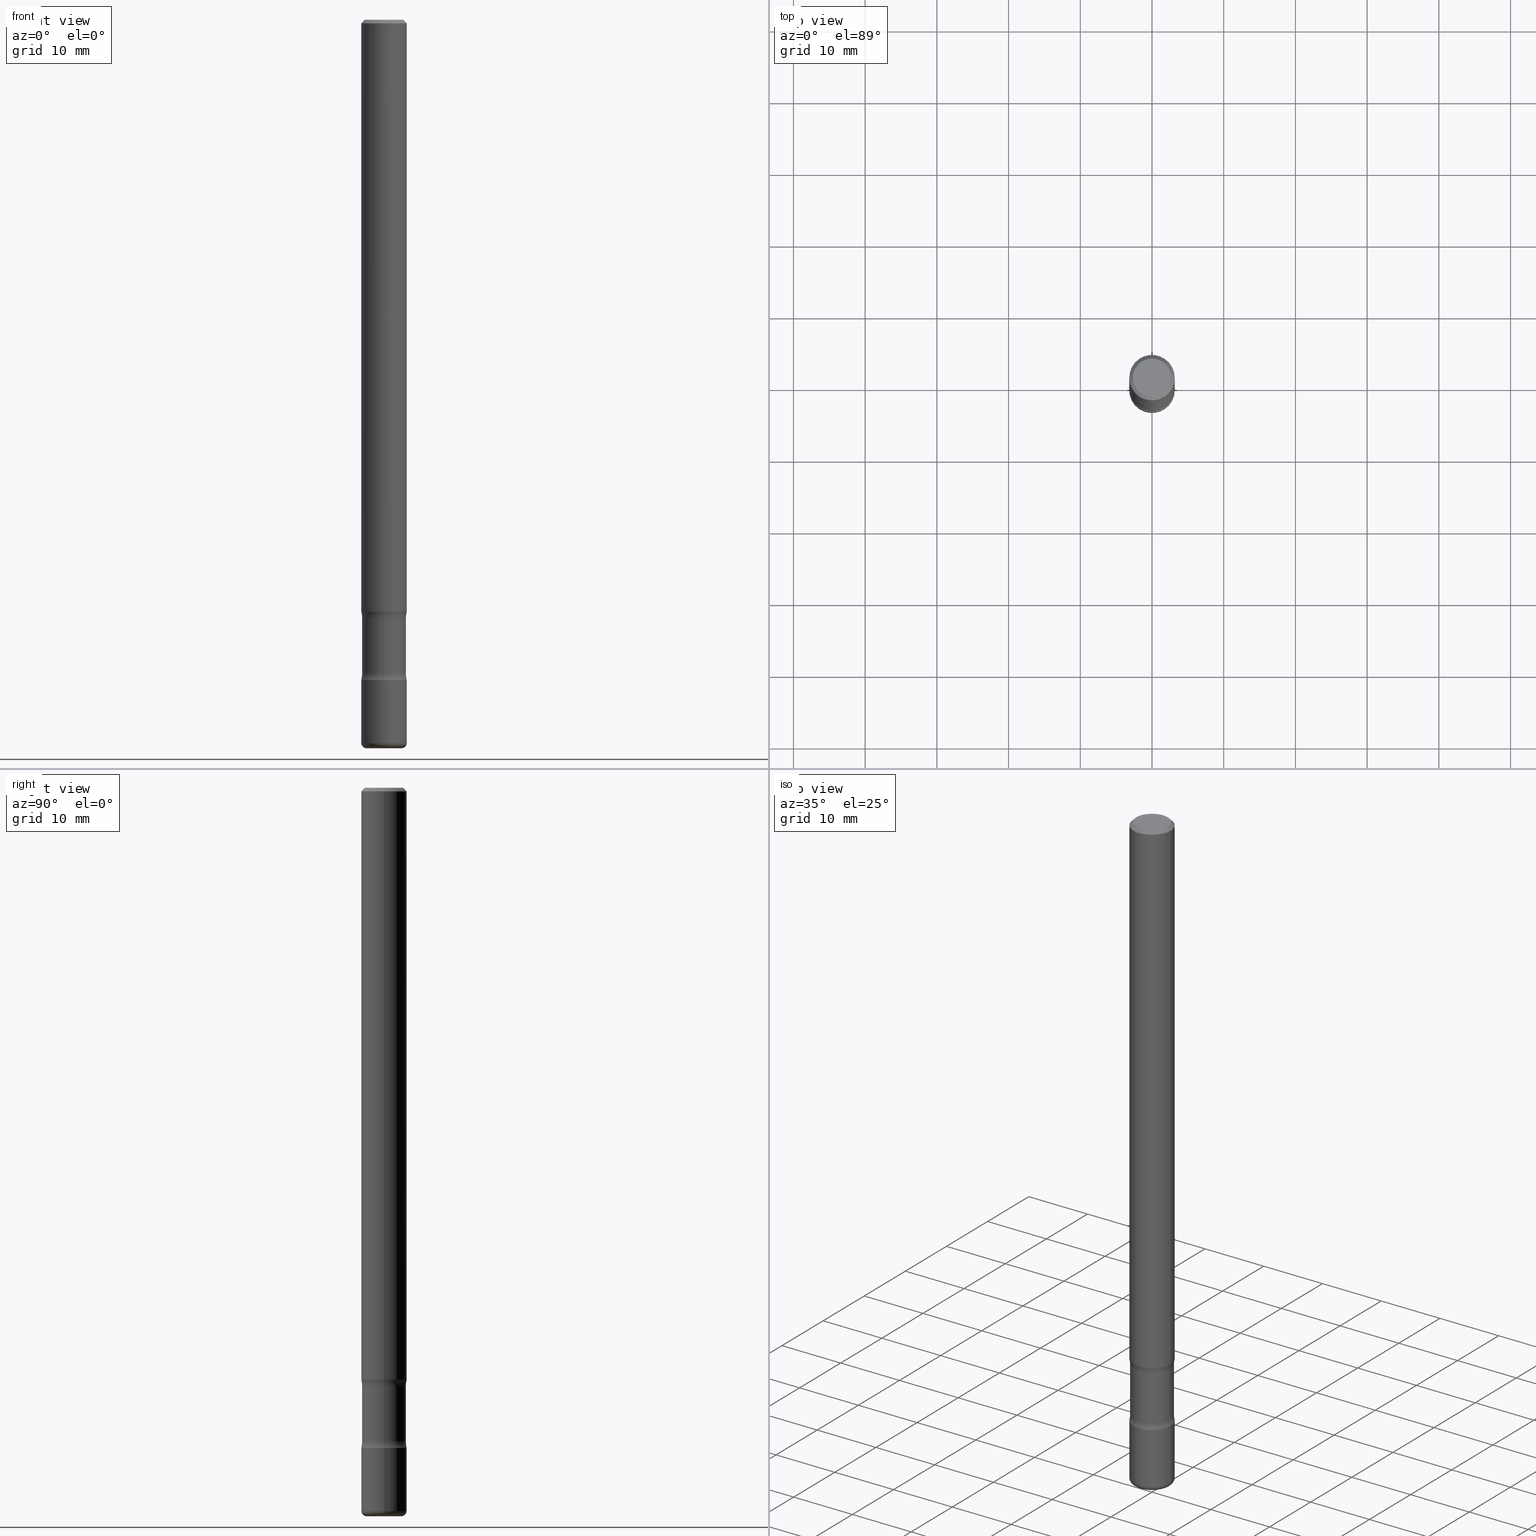
[diagram: canonical four-view strip — front | top / right | iso, engineering-drawing reading convention]
A machine part, canonical four-view strip (front | top / right | iso — engineering-drawing reading convention). The complete STEP part file that produces these views, byte-faithful:
ISO-10303-21;
HEADER;
FILE_DESCRIPTION (( 'STEP AP203' ),
    '1' );
FILE_NAME ('32818.STEP',
    '2023-03-11T07:03:55',
    ( '' ),
    ( '' ),
    'SwSTEP 2.0',
    'SolidWorks 2022',
    '' );
FILE_SCHEMA (( 'CONFIG_CONTROL_DESIGN' ));
ENDSEC;

DATA;
#1 = ORIENTED_EDGE ( 'NONE', *, *, #155, .T. ) ;
#2 = CIRCLE ( 'NONE', #408, 0.1250000000000000278 ) ;
#3 = AXIS2_PLACEMENT_3D ( 'NONE', #372, #666, #156 ) ;
#4 = ADVANCED_FACE ( 'NONE', ( #358 ), #473, .F. ) ;
#5 = ORIENTED_EDGE ( 'NONE', *, *, #150, .T. ) ;
#6 = APPROVAL_DATE_TIME ( #498, #399 ) ;
#7 = CARTESIAN_POINT ( 'NONE',  ( 0.1250000000000000555, -1.222018468595100619E-14, -3.250000000000000000 ) ) ;
#8 = EDGE_CURVE ( 'NONE', #611, #263, #296, .T. ) ;
#9 = CLOSED_SHELL ( 'NONE', ( #48, #315, #489, #176, #683, #194, #4, #525 ) ) ;
#10 = AXIS2_PLACEMENT_3D ( 'NONE', #643, #86, #81 ) ;
#11 = CARTESIAN_POINT ( 'NONE',  ( -0.1200000000000000649, -1.049466306832810345E-14, -3.250000000000000000 ) ) ;
#12 = VECTOR ( 'NONE', #334, 39.37007874015748143 ) ;
#13 = DIRECTION ( 'NONE',  ( 2.438088387897960049E-29, -3.491481338843145188E-15, -1.000000000000000000 ) ) ;
#14 = EDGE_CURVE ( 'NONE', #263, #758, #792, .T. ) ;
#15 = DIRECTION ( 'NONE',  ( 6.982962677686265922E-15, 1.000000000000000000, -4.553079989440436725E-15 ) ) ;
#16 = FACE_OUTER_BOUND ( 'NONE', #382, .T. ) ;
#17 = CALENDAR_DATE ( 2023, 11, 3 ) ;
#18 = EDGE_CURVE ( 'NONE', #765, #564, #405, .T. ) ;
#19 = DIRECTION ( 'NONE',  ( 2.447693432453716965E-29, -3.488295547408674673E-15, -1.000000000000000000 ) ) ;
#20 = FACE_OUTER_BOUND ( 'NONE', #553, .T. ) ;
#21 = VECTOR ( 'NONE', #266, 39.37007874015748854 ) ;
#22 = ADVANCED_FACE ( 'NONE', ( #20 ), #161, .F. ) ;
#23 = VECTOR ( 'NONE', #595, 39.37007874015748143 ) ;
#24 = CC_DESIGN_SECURITY_CLASSIFICATION ( #577, ( #425 ) ) ;
#25 = LINE ( 'NONE', #307, #423 ) ;
#26 = DIRECTION ( 'NONE',  ( -2.445468806185136597E-29, 3.491481338843145583E-15, 1.000000000000000000 ) ) ;
#27 = CARTESIAN_POINT ( 'NONE',  ( 8.864824422421120163E-29, -1.265661985330640259E-14, -3.624999999999999556 ) ) ;
#28 = DIRECTION ( 'NONE',  ( 6.982962677686265922E-15, 1.000000000000000000, -4.553079989440435936E-15 ) ) ;
#29 = ORIENTED_EDGE ( 'NONE', *, *, #308, .T. ) ;
#30 = EDGE_CURVE ( 'NONE', #785, #612, #460, .T. ) ;
#31 = EDGE_CURVE ( 'NONE', #419, #275, #210, .T. ) ;
#32 = DIRECTION ( 'NONE',  ( -2.445468806185136597E-29, 3.491481338843145583E-15, 1.000000000000000000 ) ) ;
#33 = DIRECTION ( 'NONE',  ( 6.982962677686265922E-15, 1.000000000000000000, -3.488295547408674673E-15 ) ) ;
#34 = AXIS2_PLACEMENT_3D ( 'NONE', #804, #114, #93 ) ;
#35 = AXIS2_PLACEMENT_3D ( 'NONE', #141, #13, #305 ) ;
#36 = DIRECTION ( 'NONE',  ( -1.000000000000000000, 6.982962677686266711E-15, 0.000000000000000000 ) ) ;
#37 = ORIENTED_EDGE ( 'NONE', *, *, #190, .F. ) ;
#38 = DIRECTION ( 'NONE',  ( 2.438088387897960049E-29, -3.491481338843145188E-15, -1.000000000000000000 ) ) ;
#39 = CARTESIAN_POINT ( 'NONE',  ( 7.947773620101693940E-29, -1.134731435124022443E-14, -3.250000000000000000 ) ) ;
#40 = LINE ( 'NONE', #532, #23 ) ;
#41 = DIRECTION ( 'NONE',  ( 6.982962677686265922E-15, 1.000000000000000000, -4.553079989440435148E-15 ) ) ;
#42 = EDGE_CURVE ( 'NONE', #765, #409, #149, .T. ) ;
#43 = FACE_OUTER_BOUND ( 'NONE', #570, .T. ) ;
#44 = ORIENTED_EDGE ( 'NONE', *, *, #125, .F. ) ;
#45 = CARTESIAN_POINT ( 'NONE',  ( 7.947773620101693940E-29, -1.134731435124022443E-14, -3.250000000000000000 ) ) ;
#46 = DIRECTION ( 'NONE',  ( 1.000000000000000000, -6.982962677686265922E-15, 4.876176775795935793E-29 ) ) ;
#47 = EDGE_LOOP ( 'NONE', ( #238, #137, #657, #486 ) ) ;
#48 = ADVANCED_FACE ( 'NONE', ( #649 ), #135, .T. ) ;
#49 = AXIS2_PLACEMENT_3D ( 'NONE', #493, #61, #347 ) ;
#50 = TOROIDAL_SURFACE ( 'NONE', #563, 0.09499999999999998723, 0.02999999999999970399 ) ;
#51 = ORIENTED_EDGE ( 'NONE', *, *, #621, .F. ) ;
#52 = CARTESIAN_POINT ( 'NONE',  ( 8.728703347108632110E-16, 0.1249999999999886896, -3.250000000000000444 ) ) ;
#53 = DIRECTION ( 'NONE',  ( -2.445468806185136597E-29, 3.491481338843145583E-15, 1.000000000000000000 ) ) ;
#54 = DIRECTION ( 'NONE',  ( -2.445468806185136597E-29, 3.491481338843145583E-15, 1.000000000000000000 ) ) ;
#55 = COORDINATED_UNIVERSAL_TIME_OFFSET ( 5, 0, .BEHIND. ) ;
#56 = DIRECTION ( 'NONE',  ( -1.000000000000000000, 7.105427357601005014E-15, 0.000000000000000000 ) ) ;
#57 = ORIENTED_EDGE ( 'NONE', *, *, #664, .T. ) ;
#58 = EDGE_CURVE ( 'NONE', #485, #741, #143, .T. ) ;
#59 = PERSON_AND_ORGANIZATION ( #205, #119 ) ;
#60 = FACE_OUTER_BOUND ( 'NONE', #230, .T. ) ;
#61 = DIRECTION ( 'NONE',  ( -2.445468806185136597E-29, 3.491481338843145583E-15, 1.000000000000000000 ) ) ;
#62 = CARTESIAN_POINT ( 'NONE',  ( -0.09499999999999998723, -1.318616531623519397E-14, -3.970000000000000195 ) ) ;
#63 = CALENDAR_DATE ( 2023, 11, 3 ) ;
#64 = EDGE_CURVE ( 'NONE', #612, #602, #562, .T. ) ;
#65 = APPROVAL_PERSON_ORGANIZATION ( #59, #158, #294 ) ;
#66 = DIRECTION ( 'NONE',  ( 2.447693432453716965E-29, -3.488295547408674673E-15, -1.000000000000000000 ) ) ;
#67 = CC_DESIGN_PERSON_AND_ORGANIZATION_ASSIGNMENT ( #124, #292, ( #500 ) ) ;
#68 = ORIENTED_EDGE ( 'NONE', *, *, #200, .T. ) ;
#69 = EDGE_CURVE ( 'NONE', #356, #409, #25, .T. ) ;
#70 = DIRECTION ( 'NONE',  ( 6.982962677686265922E-15, 1.000000000000000000, -4.553079989440435148E-15 ) ) ;
#71 = CLOSED_SHELL ( 'NONE', ( #239, #610, #400, #22, #332, #286, #697, #279 ) ) ;
#72 = CIRCLE ( 'NONE', #98, 0.1250000000000000000 ) ;
#73 = AXIS2_PLACEMENT_3D ( 'NONE', #191, #580, #15 ) ;
#74 = LOCAL_TIME ( 2, 3, 55.00000000000000000, #55 ) ;
#75 = CARTESIAN_POINT ( 'NONE',  ( 2.539597002598725045E-27, 3.357106178336536129E-13, -4.000000000000000000 ) ) ;
#76 = ORIENTED_EDGE ( 'NONE', *, *, #31, .F. ) ;
#77 = ADVANCED_FACE ( 'NONE', ( #260 ), #253, .T. ) ;
#78 = ORIENTED_EDGE ( 'NONE', *, *, #647, .F. ) ;
#79 = DIRECTION ( 'NONE',  ( 1.000000000000000000, -6.982962677686272233E-15, 0.000000000000000000 ) ) ;
#80 = ADVANCED_FACE ( 'NONE', ( #16 ), #521, .F. ) ;
#81 = DIRECTION ( 'NONE',  ( 1.000000000000000000, -6.982962677686267499E-15, 4.876206205277409163E-29 ) ) ;
#82 = ORIENTED_EDGE ( 'NONE', *, *, #512, .T. ) ;
#83 = EDGE_LOOP ( 'NONE', ( #586, #787 ) ) ;
#84 = DIRECTION ( 'NONE',  ( -0.9993908270190959842, 6.856857904024576981E-15, -0.03489949670249575808 ) ) ;
#85 = CARTESIAN_POINT ( 'NONE',  ( 0.1250000000000000000, -1.222018468595100619E-14, -3.250000000000000000 ) ) ;
#86 = DIRECTION ( 'NONE',  ( -2.445468806185136597E-29, 3.491481338843145583E-15, 1.000000000000000000 ) ) ;
#87 = CIRCLE ( 'NONE', #488, 0.08250000000000003164 ) ;
#88 = AXIS2_PLACEMENT_3D ( 'NONE', #237, #659, #414 ) ;
#89 = DIRECTION ( 'NONE',  ( 1.000000000000000000, -6.982962677686262766E-15, 0.000000000000000000 ) ) ;
#90 = SHAPE_DEFINITION_REPRESENTATION ( #403, #646 ) ;
#91 = DIRECTION ( 'NONE',  ( 1.000000000000000000, -6.982962677686262766E-15, 0.000000000000000000 ) ) ;
#92 = CARTESIAN_POINT ( 'NONE',  ( -8.575622497213525998E-16, -0.1250000000000126288, -3.624999999999999112 ) ) ;
#93 = DIRECTION ( 'NONE',  ( 1.000000000000000000, -6.982962677686261977E-15, 0.000000000000000000 ) ) ;
#94 = ORIENTED_EDGE ( 'NONE', *, *, #42, .F. ) ;
#95 = ORIENTED_EDGE ( 'NONE', *, *, #206, .F. ) ;
#96 = LINE ( 'NONE', #599, #12 ) ;
#97 = CARTESIAN_POINT ( 'NONE',  ( 0.000000000000000000, 0.000000000000000000, 0.000000000000000000 ) ) ;
#98 = AXIS2_PLACEMENT_3D ( 'NONE', #346, #596, #539 ) ;
#99 = VERTEX_POINT ( 'NONE', #607 ) ;
#100 = VECTOR ( 'NONE', #752, 39.37007874015748143 ) ;
#101 = DIRECTION ( 'NONE',  ( 1.000000000000000000, -6.982962677686266711E-15, 4.876176775795935793E-29 ) ) ;
#102 = ORIENTED_EDGE ( 'NONE', *, *, #732, .T. ) ;
#103 = CARTESIAN_POINT ( 'NONE',  ( 4.890937612370279289E-31, -6.982962677686299005E-17, -0.02000000000000002470 ) ) ;
#104 = ORIENTED_EDGE ( 'NONE', *, *, #720, .T. ) ;
#105 = CARTESIAN_POINT ( 'NONE',  ( 7.947773620101693940E-29, -1.134731435124022443E-14, -3.250000000000000000 ) ) ;
#106 = ADVANCED_FACE ( 'NONE', ( #671 ), #616, .T. ) ;
#107 = EDGE_LOOP ( 'NONE', ( #614, #354, #701, #57 ) ) ;
#108 = VERTEX_POINT ( 'NONE', #339 ) ;
#109 = DIRECTION ( 'NONE',  ( 2.438088387897960049E-29, -3.491481338843145188E-15, -1.000000000000000000 ) ) ;
#110 = CARTESIAN_POINT ( 'NONE',  ( 7.947773620101693940E-29, -1.134731435124022443E-14, -3.250000000000000000 ) ) ;
#111 = ORIENTED_EDGE ( 'NONE', *, *, #330, .F. ) ;
#112 = ORIENTED_EDGE ( 'NONE', *, *, #443, .T. ) ;
#113 = CARTESIAN_POINT ( 'NONE',  ( -0.09499999999999998723, -1.313195612595382632E-14, -3.999999999999999556 ) ) ;
#114 = DIRECTION ( 'NONE',  ( -2.445468806185136597E-29, 3.491481338843145583E-15, 1.000000000000000000 ) ) ;
#115 = VERTEX_POINT ( 'NONE', #490 ) ;
#116 = CIRCLE ( 'NONE', #249, 0.1250000000000000000 ) ;
#117 = AXIS2_PLACEMENT_3D ( 'NONE', #736, #53, #287 ) ;
#118 = DIRECTION ( 'NONE',  ( -2.445468806185136597E-29, 3.491481338843145583E-15, 1.000000000000000000 ) ) ;
#119 = ORGANIZATION ( 'UNSPECIFIED', 'UNSPECIFIED', '' ) ;
#120 = DIRECTION ( 'NONE',  ( -2.445468806185136597E-29, 3.491481338843145583E-15, 1.000000000000000000 ) ) ;
#121 = CARTESIAN_POINT ( 'NONE',  ( 9.781875224740546387E-29, -1.396592535537258233E-14, -4.000000000000000000 ) ) ;
#122 = ORIENTED_EDGE ( 'NONE', *, *, #517, .T. ) ;
#123 = ORIENTED_EDGE ( 'NONE', *, *, #301, .F. ) ;
#124 = PERSON_AND_ORGANIZATION ( #205, #119 ) ;
#125 = EDGE_CURVE ( 'NONE', #204, #685, #72, .T. ) ;
#126 = ORIENTED_EDGE ( 'NONE', *, *, #125, .T. ) ;
#127 = DIRECTION ( 'NONE',  ( 2.447693432453716965E-29, -3.488295547408674673E-15, -1.000000000000000000 ) ) ;
#128 = AXIS2_PLACEMENT_3D ( 'NONE', #233, #677, #219 ) ;
#129 = EDGE_LOOP ( 'NONE', ( #688, #501, #111, #730 ) ) ;
#130 = CIRCLE ( 'NONE', #734, 0.1250000000000000000 ) ;
#131 = CC_DESIGN_APPROVAL ( #399, ( #500 ) ) ;
#132 = ORIENTED_EDGE ( 'NONE', *, *, #30, .F. ) ;
#133 = CARTESIAN_POINT ( 'NONE',  ( 0.000000000000000000, 0.000000000000000000, 0.000000000000000000 ) ) ;
#134 = MANIFOLD_SOLID_BREP ( 'Body-Move/Copy2[3]', #9 ) ;
#135 = CYLINDRICAL_SURFACE ( 'NONE', #573, 0.1200000000000000649 ) ;
#136 = DIRECTION ( 'NONE',  ( -2.445468806185136877E-29, 3.491481338843145188E-15, 1.000000000000000000 ) ) ;
#137 = ORIENTED_EDGE ( 'NONE', *, *, #369, .T. ) ;
#138 = ORIENTED_EDGE ( 'NONE', *, *, #8, .T. ) ;
#139 = DIRECTION ( 'NONE',  ( 6.982962677686265922E-15, 1.000000000000000000, -4.553079989440435936E-15 ) ) ;
#140 = CIRCLE ( 'NONE', #390, 0.1250000000000000278 ) ;
#141 = CARTESIAN_POINT ( 'NONE',  ( 8.864824422421120163E-29, -1.265661985330640259E-14, -3.624999999999999556 ) ) ;
#142 = EDGE_CURVE ( 'NONE', #685, #204, #116, .T. ) ;
#143 = LINE ( 'NONE', #635, #459 ) ;
#144 = ORIENTED_EDGE ( 'NONE', *, *, #369, .F. ) ;
#145 = CARTESIAN_POINT ( 'NONE',  ( 8.779233014204640876E-29, -1.253441800644689261E-14, -3.590000000000000302 ) ) ;
#146 = DIRECTION ( 'NONE',  ( -2.445468806185136877E-29, 3.491481338843145188E-15, 1.000000000000000000 ) ) ;
#147 = CARTESIAN_POINT ( 'NONE',  ( 7.332110811570557564E-16, 0.1049999999999996769, -3.644712843334789960E-16 ) ) ;
#148 = PERSON_AND_ORGANIZATION ( #205, #119 ) ;
#149 = CIRCLE ( 'NONE', #615, 0.1250000000000001110 ) ;
#150 = EDGE_CURVE ( 'NONE', #785, #472, #297, .T. ) ;
#151 = AXIS2_PLACEMENT_3D ( 'NONE', #105, #342, #739 ) ;
#152 = CARTESIAN_POINT ( 'NONE',  ( 8.033365028318175469E-29, -1.146951619809973441E-14, -3.285000000000000586 ) ) ;
#153 = DIRECTION ( 'NONE',  ( -2.447693432453716405E-29, 3.488295547408675068E-15, 1.000000000000000000 ) ) ;
#154 = CARTESIAN_POINT ( 'NONE',  ( 8.779155152285240110E-29, -1.253452950914709766E-14, -3.589999999999999858 ) ) ;
#155 = EDGE_CURVE ( 'NONE', #567, #356, #162, .T. ) ;
#156 = DIRECTION ( 'NONE',  ( 1.000000000000000000, -6.982962677686262766E-15, 0.000000000000000000 ) ) ;
#157 = FACE_OUTER_BOUND ( 'NONE', #199, .T. ) ;
#158 = APPROVAL ( #244, 'UNSPECIFIED' ) ;
#159 = DIRECTION ( 'NONE',  ( 1.000000000000000000, -6.982962677686264344E-15, 4.883557194083112340E-29 ) ) ;
#160 = DIRECTION ( 'NONE',  ( -2.445468806185136877E-29, 3.491481338843145188E-15, 1.000000000000000000 ) ) ;
#161 = TOROIDAL_SURFACE ( 'NONE', #731, 0.2450000000000000511, 0.1250000000000001110 ) ;
#162 = CIRCLE ( 'NONE', #49, 0.1200000000000000927 ) ;
#163 = TOROIDAL_SURFACE ( 'NONE', #476, 0.2450000000000000511, 0.1250000000000001110 ) ;
#164 = CARTESIAN_POINT ( 'NONE',  ( 9.708511160554992872E-29, -1.386118091520728738E-14, -3.970000000000000195 ) ) ;
#165 = CC_DESIGN_APPROVAL ( #378, ( #577 ) ) ;
#166 = ADVANCED_FACE ( 'NONE', ( #674, #588 ), #325, .F. ) ;
#167 = CARTESIAN_POINT ( 'NONE',  ( 8.779233014204640876E-29, -1.253441800644689261E-14, -3.590000000000000302 ) ) ;
#168 = ORIENTED_EDGE ( 'NONE', *, *, #621, .T. ) ;
#169 = ORIENTED_EDGE ( 'NONE', *, *, #217, .T. ) ;
#170 = DIRECTION ( 'NONE',  ( -1.000000000000000000, 6.982962677686265922E-15, -4.876176775795935793E-29 ) ) ;
#171 = DIRECTION ( 'NONE',  ( -2.438088387897960049E-29, 3.491481338843145188E-15, 1.000000000000000000 ) ) ;
#172 = EDGE_LOOP ( 'NONE', ( #724, #138, #397, #543 ) ) ;
#173 = CARTESIAN_POINT ( 'NONE',  ( 0.1200000000000000927, -1.337237352776924272E-14, -3.589999999999999858 ) ) ;
#174 = ORIENTED_EDGE ( 'NONE', *, *, #14, .T. ) ;
#175 = DIRECTION ( 'NONE',  ( 0.000000000000000000, 0.000000000000000000, 1.000000000000000000 ) ) ;
#176 = ADVANCED_FACE ( 'NONE', ( #768 ), #197, .F. ) ;
#177 = DIRECTION ( 'NONE',  ( -1.000000000000000000, 7.105427357600994759E-15, 0.000000000000000000 ) ) ;
#178 = AXIS2_PLACEMENT_3D ( 'NONE', #164, #508, #761 ) ;
#179 = AXIS2_PLACEMENT_3D ( 'NONE', #97, #593, #770 ) ;
#180 = CYLINDRICAL_SURFACE ( 'NONE', #392, 0.1249999999999998473 ) ;
#181 = ADVANCED_FACE ( 'NONE', ( #555 ), #784, .T. ) ;
#182 = DIRECTION ( 'NONE',  ( -2.445468806185136597E-29, 3.491481338843145583E-15, 1.000000000000000000 ) ) ;
#183 = CARTESIAN_POINT ( 'NONE',  ( 0.1249999999999998473, -1.473405124991807072E-14, -3.970000000000000195 ) ) ;
#184 = ORIENTED_EDGE ( 'NONE', *, *, #439, .F. ) ;
#185 = EDGE_CURVE ( 'NONE', #115, #773, #665, .T. ) ;
#186 = CIRCLE ( 'NONE', #638, 0.1250000000000000000 ) ;
#187 = AXIS2_PLACEMENT_3D ( 'NONE', #45, #171, #673 ) ;
#188 = EDGE_CURVE ( 'NONE', #611, #457, #436, .T. ) ;
#189 =( NAMED_UNIT ( * ) PLANE_ANGLE_UNIT ( ) SI_UNIT ( $, .RADIAN. ) );
#190 = EDGE_CURVE ( 'NONE', #108, #415, #728, .T. ) ;
#191 = CARTESIAN_POINT ( 'NONE',  ( 8.032608655386859192E-29, -1.147059936718745526E-14, -3.285000000000000586 ) ) ;
#192 = ORIENTED_EDGE ( 'NONE', *, *, #427, .T. ) ;
#193 = DIRECTION ( 'NONE',  ( 2.447693432453716965E-29, -3.488295547408674673E-15, -1.000000000000000000 ) ) ;
#194 = ADVANCED_FACE ( 'NONE', ( #43 ), #278, .T. ) ;
#195 = CARTESIAN_POINT ( 'NONE',  ( 8.033365028318175469E-29, -1.146951619809973441E-14, -3.285000000000000586 ) ) ;
#196 = CARTESIAN_POINT ( 'NONE',  ( 8.379555213224326466E-16, 0.1199999999999885741, -3.285000000000001030 ) ) ;
#197 = TOROIDAL_SURFACE ( 'NONE', #474, 0.2450000000000000511, 0.1250000000000001110 ) ;
#198 = DIRECTION ( 'NONE',  ( 1.000000000000000000, -6.982962677686266711E-15, 0.000000000000000000 ) ) ;
#199 = EDGE_LOOP ( 'NONE', ( #281, #696 ) ) ;
#200 = EDGE_CURVE ( 'NONE', #564, #494, #212, .T. ) ;
#201 = DIRECTION ( 'NONE',  ( -2.445468806185136597E-29, 3.491481338843145583E-15, 1.000000000000000000 ) ) ;
#202 = DIRECTION ( 'NONE',  ( 1.000000000000000000, -6.860497997771530774E-15, 4.840837894316972878E-29 ) ) ;
#203 = DIRECTION ( 'NONE',  ( 1.000000000000000000, -6.982962677686261977E-15, 0.000000000000000000 ) ) ;
#204 = VERTEX_POINT ( 'NONE', #430 ) ;
#205 = PERSON ( 'UNSPECIFIED', 'UNSPECIFIED', 'UNSPECIFIED', ('UNSPECIFIED'), ('UNSPECIFIED'), ('UNSPECIFIED') ) ;
#206 = EDGE_CURVE ( 'NONE', #356, #419, #589, .T. ) ;
#207 = CARTESIAN_POINT ( 'NONE',  ( 7.947773620101693940E-29, -1.134731435124022443E-14, -3.250000000000000000 ) ) ;
#208 = CARTESIAN_POINT ( 'NONE',  ( -0.1249999999999996947, 8.030407079339181671E-16, -0.02000000000000002470 ) ) ;
#209 = DIRECTION ( 'NONE',  ( -2.445468806185136597E-29, 3.491481338843145583E-15, 1.000000000000000000 ) ) ;
#210 = CIRCLE ( 'NONE', #386, 0.1250000000000000000 ) ;
#211 = EDGE_CURVE ( 'NONE', #788, #741, #504, .T. ) ;
#212 = CIRCLE ( 'NONE', #733, 0.1250000000000001110 ) ;
#213 = CIRCLE ( 'NONE', #268, 0.1200000000000000511 ) ;
#214 = EDGE_LOOP ( 'NONE', ( #389, #295, #482, #667 ) ) ;
#215 = CYLINDRICAL_SURFACE ( 'NONE', #505, 0.1200000000000000649 ) ;
#216 = DIRECTION ( 'NONE',  ( 2.447693432453716965E-29, -3.488295547408674673E-15, -1.000000000000000000 ) ) ;
#217 = EDGE_CURVE ( 'NONE', #356, #567, #367, .T. ) ;
#218 = FACE_OUTER_BOUND ( 'NONE', #47, .T. ) ;
#219 = DIRECTION ( 'NONE',  ( 1.000000000000000000, -6.982962677686267499E-15, 4.876206205277409163E-29 ) ) ;
#220 = DIRECTION ( 'NONE',  ( 1.000000000000000000, -6.982962677686262766E-15, 0.000000000000000000 ) ) ;
#221 = CARTESIAN_POINT ( 'NONE',  ( 9.783722014418221088E-29, -1.394313253754446312E-14, -3.997119036516931345 ) ) ;
#222 = ORIENTED_EDGE ( 'NONE', *, *, #142, .T. ) ;
#223 = FACE_OUTER_BOUND ( 'NONE', #470, .T. ) ;
#224 = DIRECTION ( 'NONE',  ( 1.000000000000000000, -6.982962677686262766E-15, 0.000000000000000000 ) ) ;
#225 = AXIS2_PLACEMENT_3D ( 'NONE', #327, #537, #313 ) ;
#226 = AXIS2_PLACEMENT_3D ( 'NONE', #464, #153, #658 ) ;
#227 = CIRCLE ( 'NONE', #700, 0.02999999999999969705 ) ;
#228 = ADVANCED_FACE ( 'NONE', ( #729 ), #477, .F. ) ;
#229 = DIRECTION ( 'NONE',  ( 6.982962677686265922E-15, 1.000000000000000000, -4.370956789862821150E-15 ) ) ;
#230 = EDGE_LOOP ( 'NONE', ( #352, #280, #771, #763 ) ) ;
#231 = CARTESIAN_POINT ( 'NONE',  ( -0.1200000000000000511, -1.053800042336385789E-14, -3.285000000000000586 ) ) ;
#232 = LINE ( 'NONE', #11, #100 ) ;
#233 = CARTESIAN_POINT ( 'NONE',  ( -1.043851414335219820E-46, 1.490343170380447200E-32, 4.268512490100411279E-18 ) ) ;
#234 = ORIENTED_EDGE ( 'NONE', *, *, #720, .F. ) ;
#235 = ORIENTED_EDGE ( 'NONE', *, *, #742, .T. ) ;
#236 = PRODUCT_RELATED_PRODUCT_CATEGORY ( 'detail', '', ( #597 ) ) ;
#237 = CARTESIAN_POINT ( 'NONE',  ( 4.890937612370279289E-31, -6.982962677686299005E-17, -0.02000000000000002470 ) ) ;
#238 = ORIENTED_EDGE ( 'NONE', *, *, #142, .F. ) ;
#239 = ADVANCED_FACE ( 'NONE', ( #60 ), #750, .T. ) ;
#240 = DIRECTION ( 'NONE',  ( 1.000000000000000000, -6.982962677686261189E-15, 0.000000000000000000 ) ) ;
#241 = VERTEX_POINT ( 'NONE', #196 ) ;
#242 = AXIS2_PLACEMENT_3D ( 'NONE', #362, #624, #749 ) ;
#243 = AXIS2_PLACEMENT_3D ( 'NONE', #800, #492, #626 ) ;
#244 = APPROVAL_STATUS ( 'not_yet_approved' ) ;
#245 = VERTEX_POINT ( 'NONE', #85 ) ;
#246 = APPROVAL_DATE_TIME ( #299, #158 ) ;
#247 = LENGTH_MEASURE_WITH_UNIT ( LENGTH_MEASURE( 0.02539999999999999897 ), #426 );
#248 = CARTESIAN_POINT ( 'NONE',  ( 8.033365028318175469E-29, -1.146951619809973441E-14, -3.285000000000000586 ) ) ;
#249 = AXIS2_PLACEMENT_3D ( 'NONE', #531, #781, #465 ) ;
#250 = EDGE_CURVE ( 'NONE', #741, #788, #87, .T. ) ;
#251 = CIRCLE ( 'NONE', #151, 0.1250000000000000000 ) ;
#252 = DIRECTION ( 'NONE',  ( 1.000000000000000000, -6.982962677686266711E-15, 4.876176775795935793E-29 ) ) ;
#253 = CYLINDRICAL_SURFACE ( 'NONE', #756, 0.1249999999999998473 ) ;
#254 = LINE ( 'NONE', #511, #21 ) ;
#255 = CARTESIAN_POINT ( 'NONE',  ( 0.09499999999999998723, -1.462930680975277420E-14, -3.999999999999999556 ) ) ;
#256 = DIRECTION ( 'NONE',  ( -6.982962677686266711E-15, -1.000000000000000000, 3.491481338843145583E-15 ) ) ;
#257 = AXIS2_PLACEMENT_3D ( 'NONE', #737, #109, #349 ) ;
#258 = CIRCLE ( 'NONE', #3, 0.1250000000000000000 ) ;
#259 = LINE ( 'NONE', #456, #462 ) ;
#260 = FACE_OUTER_BOUND ( 'NONE', #282, .T. ) ;
#261 = CALENDAR_DATE ( 2023, 11, 3 ) ;
#262 = DIRECTION ( 'NONE',  ( 1.000000000000000000, -6.982962677686266711E-15, 4.883557194083112901E-29 ) ) ;
#263 = VERTEX_POINT ( 'NONE', #636 ) ;
#264 = ORIENTED_EDGE ( 'NONE', *, *, #512, .F. ) ;
#265 = AXIS2_PLACEMENT_3D ( 'NONE', #694, #753, #291 ) ;
#266 = DIRECTION ( 'NONE',  ( 0.9993908270190959842, -6.978169709227524922E-15, -0.03489949670249575808 ) ) ;
#267 = CARTESIAN_POINT ( 'NONE',  ( 8.379555213224403380E-16, 0.1199999999999875472, -3.590000000000000302 ) ) ;
#268 = AXIS2_PLACEMENT_3D ( 'NONE', #248, #182, #343 ) ;
#269 = ORIENTED_EDGE ( 'NONE', *, *, #217, .F. ) ;
#270 = DIRECTION ( 'NONE',  ( 6.982962677686265922E-15, 1.000000000000000000, -3.488295547408674673E-15 ) ) ;
#271 = EDGE_CURVE ( 'NONE', #485, #788, #254, .T. ) ;
#272 = CARTESIAN_POINT ( 'NONE',  ( 8.033365028318175469E-29, -1.146951619809973441E-14, -3.285000000000000586 ) ) ;
#273 = ORIENTED_EDGE ( 'NONE', *, *, #69, .T. ) ;
#274 = EDGE_LOOP ( 'NONE', ( #547, #82 ) ) ;
#275 = VERTEX_POINT ( 'NONE', #544 ) ;
#276 = CARTESIAN_POINT ( 'NONE',  ( 0.1250000000000000000, -8.728703347107833388E-16, 6.095220969744919741E-30 ) ) ;
#277 = ORIENTED_EDGE ( 'NONE', *, *, #516, .T. ) ;
#278 = PLANE ( 'NONE',  #257 ) ;
#279 = ADVANCED_FACE ( 'NONE', ( #413 ), #672, .T. ) ;
#280 = ORIENTED_EDGE ( 'NONE', *, *, #30, .T. ) ;
#281 = ORIENTED_EDGE ( 'NONE', *, *, #516, .F. ) ;
#282 = EDGE_LOOP ( 'NONE', ( #37, #235, #192, #184 ) ) ;
#283 = DIRECTION ( 'NONE',  ( 2.447693432453716965E-29, -3.488295547408674673E-15, -1.000000000000000000 ) ) ;
#284 = AXIS2_PLACEMENT_3D ( 'NONE', #479, #782, #783 ) ;
#285 = ORIENTED_EDGE ( 'NONE', *, *, #271, .T. ) ;
#286 = ADVANCED_FACE ( 'NONE', ( #223 ), #777, .F. ) ;
#287 = DIRECTION ( 'NONE',  ( 1.000000000000000000, -6.982962677686265133E-15, 0.000000000000000000 ) ) ;
#288 = DIRECTION ( 'NONE',  ( -2.445468806185136597E-29, 3.491481338843145583E-15, 1.000000000000000000 ) ) ;
#289 = EDGE_LOOP ( 'NONE', ( #452, #1, #273, #416 ) ) ;
#290 = CARTESIAN_POINT ( 'NONE',  ( -0.2450000000000001066, -1.079358830383464797E-14, -3.590000000000000302 ) ) ;
#291 = DIRECTION ( 'NONE',  ( 6.982962677686265922E-15, 1.000000000000000000, -3.488295547408675068E-15 ) ) ;
#292 = PERSON_AND_ORGANIZATION_ROLE ( 'creator' ) ;
#293 = EDGE_LOOP ( 'NONE', ( #302, #68, #507, #94 ) ) ;
#294 = APPROVAL_ROLE ( '' ) ;
#295 = ORIENTED_EDGE ( 'NONE', *, *, #188, .T. ) ;
#296 = CIRCLE ( 'NONE', #695, 0.02999999999999969705 ) ;
#297 = CIRCLE ( 'NONE', #388, 0.1250000000000001110 ) ;
#298 = AXIS2_PLACEMENT_3D ( 'NONE', #481, #723, #270 ) ;
#299 = DATE_AND_TIME ( #63, #641 ) ;
#300 = CARTESIAN_POINT ( 'NONE',  ( 0.1249999999999996947, -9.273918764983021797E-16, -0.02000000000000002470 ) ) ;
#301 = EDGE_CURVE ( 'NONE', #241, #785, #319, .T. ) ;
#302 = ORIENTED_EDGE ( 'NONE', *, *, #341, .F. ) ;
#303 =( CONVERSION_BASED_UNIT ( 'INCH', #247 ) LENGTH_UNIT ( ) NAMED_UNIT ( #711 ) );
#304 = FACE_OUTER_BOUND ( 'NONE', #289, .T. ) ;
#305 = DIRECTION ( 'NONE',  ( -1.000000000000000000, 6.982962677686265922E-15, -4.876176775795935793E-29 ) ) ;
#306 = AXIS2_PLACEMENT_3D ( 'NONE', #110, #350, #46 ) ;
#307 = CARTESIAN_POINT ( 'NONE',  ( 0.1200000000000000649, -1.218526987256257612E-14, -3.250000000000000000 ) ) ;
#308 = EDGE_CURVE ( 'NONE', #773, #115, #778, .T. ) ;
#309 = AXIS2_PLACEMENT_3D ( 'NONE', #450, #606, #418 ) ;
#310 = FACE_OUTER_BOUND ( 'NONE', #755, .T. ) ;
#311 = CARTESIAN_POINT ( 'NONE',  ( 4.890937612370279289E-31, -6.982962677686299005E-17, -0.02000000000000002470 ) ) ;
#312 = DIRECTION ( 'NONE',  ( -2.445468806185136597E-29, 3.491481338843145583E-15, 1.000000000000000000 ) ) ;
#313 = DIRECTION ( 'NONE',  ( 6.982962677686265922E-15, 1.000000000000000000, -4.553079989440436725E-15 ) ) ;
#314 = DATE_TIME_ROLE ( 'classification_date' ) ;
#315 = ADVANCED_FACE ( 'NONE', ( #310 ), #461, .F. ) ;
#316 = ORIENTED_EDGE ( 'NONE', *, *, #250, .F. ) ;
#317 = APPLICATION_CONTEXT ( 'configuration controlled 3d designs of mechanical parts and assemblies' ) ;
#318 = DIRECTION ( 'NONE',  ( 6.982962677686265922E-15, 1.000000000000000000, -3.488295547408674673E-15 ) ) ;
#319 = CIRCLE ( 'NONE', #225, 0.1200000000000000511 ) ;
#320 = VERTEX_POINT ( 'NONE', #52 ) ;
#321 = VECTOR ( 'NONE', #727, 39.37007874015748143 ) ;
#322 = TOROIDAL_SURFACE ( 'NONE', #797, 0.2450000000000001066, 0.1250000000000000278 ) ;
#323 = ADVANCED_FACE ( 'NONE', ( #453 ), #794, .T. ) ;
#324 = DIRECTION ( 'NONE',  ( 1.000000000000000000, -6.982962677686262766E-15, 0.000000000000000000 ) ) ;
#325 = PLANE ( 'NONE',  #406 ) ;
#326 = ADVANCED_FACE ( 'NONE', ( #578 ), #499, .F. ) ;
#327 = CARTESIAN_POINT ( 'NONE',  ( 8.032608655386859192E-29, -1.147059936718745526E-14, -3.285000000000000586 ) ) ;
#328 = DIRECTION ( 'NONE',  ( -1.000000000000000000, 6.982962677686265922E-15, -4.883557194083112340E-29 ) ) ;
#329 = DIRECTION ( 'NONE',  ( -2.445468806185136597E-29, 3.491481338843145583E-15, 1.000000000000000000 ) ) ;
#330 = EDGE_CURVE ( 'NONE', #640, #99, #186, .T. ) ;
#331 = ORIENTED_EDGE ( 'NONE', *, *, #443, .F. ) ;
#332 = ADVANCED_FACE ( 'NONE', ( #157 ), #333, .F. ) ;
#333 = PLANE ( 'NONE',  #265 ) ;
#334 = DIRECTION ( 'NONE',  ( -0.7071067811865471286, 2.468850131082252722E-15, -0.7071067811865479058 ) ) ;
#335 = VECTOR ( 'NONE', #545, 39.37007874015748143 ) ;
#336 = DIRECTION ( 'NONE',  ( 1.000000000000000000, -6.982962677686266711E-15, 4.883557194083112901E-29 ) ) ;
#337 = AXIS2_PLACEMENT_3D ( 'NONE', #133, #175, #487 ) ;
#338 = ORIENTED_EDGE ( 'NONE', *, *, #704, .T. ) ;
#339 = CARTESIAN_POINT ( 'NONE',  ( -0.1250000000000000278, -4.820393569308410741E-15, -3.250000000000000000 ) ) ;
#340 = ORIENTED_EDGE ( 'NONE', *, *, #250, .T. ) ;
#341 = EDGE_CURVE ( 'NONE', #564, #765, #601, .T. ) ;
#342 = DIRECTION ( 'NONE',  ( -2.445468806185136597E-29, 3.491481338843145583E-15, 1.000000000000000000 ) ) ;
#343 = DIRECTION ( 'NONE',  ( 1.000000000000000000, -6.982962677686265133E-15, 0.000000000000000000 ) ) ;
#344 = ORIENTED_EDGE ( 'NONE', *, *, #497, .T. ) ;
#345 = CARTESIAN_POINT ( 'NONE',  ( -0.1249999999999998473, 8.881784197001241477E-16, -6.148668862818624520E-30 ) ) ;
#346 = CARTESIAN_POINT ( 'NONE',  ( 8.864824422421120163E-29, -1.265661985330640259E-14, -3.624999999999999556 ) ) ;
#347 = DIRECTION ( 'NONE',  ( 1.000000000000000000, -6.982962677686262766E-15, 0.000000000000000000 ) ) ;
#348 = ADVANCED_FACE ( 'NONE', ( #361 ), #447, .F. ) ;
#349 = DIRECTION ( 'NONE',  ( -1.000000000000000000, 6.982962677686265922E-15, -4.876176775795935793E-29 ) ) ;
#350 = DIRECTION ( 'NONE',  ( -2.438088387897960049E-29, 3.491481338843145188E-15, 1.000000000000000000 ) ) ;
#351 = ORIENTED_EDGE ( 'NONE', *, *, #64, .F. ) ;
#352 = ORIENTED_EDGE ( 'NONE', *, *, #301, .T. ) ;
#353 = DIRECTION ( 'NONE',  ( 2.445468806185136597E-29, -3.491481338843145583E-15, -1.000000000000000000 ) ) ;
#354 = ORIENTED_EDGE ( 'NONE', *, *, #18, .F. ) ;
#355 = AXIS2_PLACEMENT_3D ( 'NONE', #154, #283, #41 ) ;
#356 = VERTEX_POINT ( 'NONE', #173 ) ;
#357 = EDGE_CURVE ( 'NONE', #567, #275, #2, .T. ) ;
#358 = FACE_OUTER_BOUND ( 'NONE', #796, .T. ) ;
#359 = PERSON_AND_ORGANIZATION ( #205, #119 ) ;
#360 = EDGE_LOOP ( 'NONE', ( #560, #285, #316 ) ) ;
#361 = FACE_OUTER_BOUND ( 'NONE', #360, .T. ) ;
#362 = CARTESIAN_POINT ( 'NONE',  ( 7.947773620101693940E-29, -1.134731435124022443E-14, -3.250000000000000000 ) ) ;
#363 = APPLICATION_PROTOCOL_DEFINITION ( 'international standard', 'config_control_design', 1994, #317 ) ;
#364 = CARTESIAN_POINT ( 'NONE',  ( -0.1250000000000000555, -1.045913593154009919E-14, -3.250000000000000000 ) ) ;
#365 = ADVANCED_FACE ( 'NONE', ( #393 ), #546, .T. ) ;
#366 = PERSON_AND_ORGANIZATION ( #205, #119 ) ;
#367 = CIRCLE ( 'NONE', #707, 0.1200000000000000927 ) ;
#368 = CIRCLE ( 'NONE', #639, 0.1250000000000000000 ) ;
#369 = EDGE_CURVE ( 'NONE', #685, #612, #550, .T. ) ;
#370 = FACE_OUTER_BOUND ( 'NONE', #484, .T. ) ;
#371 = EDGE_LOOP ( 'NONE', ( #132, #801, #713, #351 ) ) ;
#372 = CARTESIAN_POINT ( 'NONE',  ( 8.864824422421120163E-29, -1.265661985330640259E-14, -3.624999999999999556 ) ) ;
#373 = DIRECTION ( 'NONE',  ( 1.000000000000000000, -6.982962677686264344E-15, 0.000000000000000000 ) ) ;
#374 = DIRECTION ( 'NONE',  ( 6.982962677686265922E-15, 1.000000000000000000, -3.488295547408674673E-15 ) ) ;
#375 = ORIENTED_EDGE ( 'NONE', *, *, #454, .F. ) ;
#376 = AXIS2_PLACEMENT_3D ( 'NONE', #631, #66, #139 ) ;
#377 = CIRCLE ( 'NONE', #795, 0.1249999999999996947 ) ;
#378 = APPROVAL ( #592, 'UNSPECIFIED' ) ;
#379 = CARTESIAN_POINT ( 'NONE',  ( 1.060531293745186782E-27, -1.514157617551786646E-13, -43.36719777667440923 ) ) ;
#380 = CARTESIAN_POINT ( 'NONE',  ( 0.1249999999999999584, -1.352949018801718435E-14, -3.624999999999999556 ) ) ;
#381 = ORIENTED_EDGE ( 'NONE', *, *, #439, .T. ) ;
#382 = EDGE_LOOP ( 'NONE', ( #559, #444, #620 ) ) ;
#383 = DESIGN_CONTEXT ( 'detailed design', #455, 'design' ) ;
#384 = PERSON_AND_ORGANIZATION ( #205, #119 ) ;
#385 = CARTESIAN_POINT ( 'NONE',  ( 1.710825856033215887E-15, 0.2449999999999885880, -3.285000000000001918 ) ) ;
#386 = AXIS2_PLACEMENT_3D ( 'NONE', #709, #715, #89 ) ;
#387 = CARTESIAN_POINT ( 'NONE',  ( 8.033365028318175469E-29, -1.146951619809973441E-14, -3.285000000000000586 ) ) ;
#388 = AXIS2_PLACEMENT_3D ( 'NONE', #721, #202, #802 ) ;
#389 = ORIENTED_EDGE ( 'NONE', *, *, #8, .F. ) ;
#390 = AXIS2_PLACEMENT_3D ( 'NONE', #483, #328, #661 ) ;
#391 = PERSON_AND_ORGANIZATION ( #205, #119 ) ;
#392 = AXIS2_PLACEMENT_3D ( 'NONE', #571, #120, #252 ) ;
#393 = FACE_OUTER_BOUND ( 'NONE', #129, .T. ) ;
#394 = FACE_OUTER_BOUND ( 'NONE', #274, .T. ) ;
#395 = DIRECTION ( 'NONE',  ( -1.000000000000000000, 6.982962677686266711E-15, 0.000000000000000000 ) ) ;
#396 = ORIENTED_EDGE ( 'NONE', *, *, #732, .F. ) ;
#397 = ORIENTED_EDGE ( 'NONE', *, *, #566, .F. ) ;
#398 = CARTESIAN_POINT ( 'NONE',  ( -0.1200000000000000927, -1.172510407857052291E-14, -3.589999999999999858 ) ) ;
#399 = APPROVAL ( #622, 'UNSPECIFIED' ) ;
#400 = ADVANCED_FACE ( 'NONE', ( #524 ), #424, .F. ) ;
#401 = CARTESIAN_POINT ( 'NONE',  ( 8.864824422421120163E-29, -1.265661985330640259E-14, -3.624999999999999556 ) ) ;
#402 = CARTESIAN_POINT ( 'NONE',  ( 9.708511160554992872E-29, -1.386118091520728738E-14, -3.970000000000000195 ) ) ;
#403 = PRODUCT_DEFINITION_SHAPE ( 'NONE', 'NONE',  #500 ) ;
#404 = EDGE_LOOP ( 'NONE', ( #793, #627 ) ) ;
#405 = CIRCLE ( 'NONE', #435, 0.1250000000000000000 ) ;
#406 = AXIS2_PLACEMENT_3D ( 'NONE', #75, #513, #585 ) ;
#407 = FACE_OUTER_BOUND ( 'NONE', #431, .T. ) ;
#408 = AXIS2_PLACEMENT_3D ( 'NONE', #290, #600, #177 ) ;
#409 = VERTEX_POINT ( 'NONE', #528 ) ;
#410 = MANIFOLD_SOLID_BREP ( 'Body-Move/Copy2[1]', #663 ) ;
#411 = CC_DESIGN_PERSON_AND_ORGANIZATION_ASSIGNMENT ( #148, #710, ( #577 ) ) ;
#412 = FACE_OUTER_BOUND ( 'NONE', #293, .T. ) ;
#413 = FACE_OUTER_BOUND ( 'NONE', #371, .T. ) ;
#414 = DIRECTION ( 'NONE',  ( 1.000000000000000000, -6.982962677686266711E-15, 0.000000000000000000 ) ) ;
#415 = VERTEX_POINT ( 'NONE', #208 ) ;
#416 = ORIENTED_EDGE ( 'NONE', *, *, #557, .F. ) ;
#417 = DIRECTION ( 'NONE',  ( -2.445468806185136597E-29, 3.491481338843145583E-15, 1.000000000000000000 ) ) ;
#418 = DIRECTION ( 'NONE',  ( -1.000000000000000000, 6.982962677686266711E-15, 0.000000000000000000 ) ) ;
#419 = VERTEX_POINT ( 'NONE', #380 ) ;
#420 = MANIFOLD_SOLID_BREP ( 'Body-Move/Copy2[4]', #71 ) ;
#421 = AXIS2_PLACEMENT_3D ( 'NONE', #145, #766, #262 ) ;
#422 = DIRECTION ( 'NONE',  ( -6.982962677686266711E-15, -1.000000000000000000, 3.491481338843145583E-15 ) ) ;
#423 = VECTOR ( 'NONE', #642, 39.37007874015748143 ) ;
#424 = TOROIDAL_SURFACE ( 'NONE', #757, 0.2450000000000000511, 0.1250000000000001110 ) ;
#425 = PRODUCT_DEFINITION_FORMATION_WITH_SPECIFIED_SOURCE ( 'ANY', '', #597, .NOT_KNOWN. ) ;
#426 =( LENGTH_UNIT ( ) NAMED_UNIT ( * ) SI_UNIT ( $, .METRE. ) );
#427 = EDGE_CURVE ( 'NONE', #245, #519, #518, .T. ) ;
#428 = ADVANCED_FACE ( 'NONE', ( #394 ), #509, .F. ) ;
#429 = CARTESIAN_POINT ( 'NONE',  ( -8.404110047269332333E-16, -0.1200000000000115280, -3.285000000000000142 ) ) ;
#430 = CARTESIAN_POINT ( 'NONE',  ( 8.728703347108718885E-16, 0.1249999999999873296, -3.625000000000000444 ) ) ;
#431 = EDGE_LOOP ( 'NONE', ( #51, #441, #102, #381 ) ) ;
#432 = EDGE_LOOP ( 'NONE', ( #29, #791 ) ) ;
#433 = PERSON_AND_ORGANIZATION ( #205, #119 ) ;
#434 = DIRECTION ( 'NONE',  ( 7.105427357601001859E-15, 1.000000000000000000, -3.491481338843145583E-15 ) ) ;
#435 = AXIS2_PLACEMENT_3D ( 'NONE', #705, #458, #515 ) ;
#436 = CIRCLE ( 'NONE', #34, 0.09499999999999998723 ) ;
#437 = AXIS2_PLACEMENT_3D ( 'NONE', #609, #353, #475 ) ;
#438 = APPROVAL_PERSON_ORGANIZATION ( #391, #378, #775 ) ;
#439 = EDGE_CURVE ( 'NONE', #415, #519, #377, .T. ) ;
#440 = EDGE_LOOP ( 'NONE', ( #144, #44, #338, #743 ) ) ;
#441 = ORIENTED_EDGE ( 'NONE', *, *, #308, .F. ) ;
#442 = DIRECTION ( 'NONE',  ( -2.445468806185136597E-29, 3.491481338843145583E-15, 1.000000000000000000 ) ) ;
#443 = EDGE_CURVE ( 'NONE', #241, #320, #603, .T. ) ;
#444 = ORIENTED_EDGE ( 'NONE', *, *, #58, .T. ) ;
#445 = CARTESIAN_POINT ( 'NONE',  ( 0.000000000000000000, 0.000000000000000000, 0.000000000000000000 ) ) ;
#446 = DIRECTION ( 'NONE',  ( -2.445468806185136597E-29, 3.491481338843145583E-15, 1.000000000000000000 ) ) ;
#447 = CONICAL_SURFACE ( 'NONE', #309, 1127.411546571649069, 1.535889741755015248 ) ;
#448 = DIRECTION ( 'NONE',  ( -1.000000000000000000, 7.105427357600997914E-15, 0.000000000000000000 ) ) ;
#449 = AXIS2_PLACEMENT_3D ( 'NONE', #39, #790, #224 ) ;
#450 = CARTESIAN_POINT ( 'NONE',  ( 1.060531293745186782E-27, -1.514157617551786646E-13, -43.36719777667440923 ) ) ;
#451 = DIRECTION ( 'NONE',  ( -6.982962677686265133E-15, -1.000000000000000000, 0.000000000000000000 ) ) ;
#452 = ORIENTED_EDGE ( 'NONE', *, *, #747, .F. ) ;
#453 = FACE_OUTER_BOUND ( 'NONE', #214, .T. ) ;
#454 = EDGE_CURVE ( 'NONE', #785, #241, #680, .T. ) ;
#455 = APPLICATION_CONTEXT ( 'configuration controlled 3d designs of mechanical parts and assemblies' ) ;
#456 = CARTESIAN_POINT ( 'NONE',  ( -0.1250000000000000000, 8.881784197001252323E-16, -6.148668862818632227E-30 ) ) ;
#457 = VERTEX_POINT ( 'NONE', #255 ) ;
#458 = DIRECTION ( 'NONE',  ( -2.445468806185136597E-29, 3.491481338843145583E-15, 1.000000000000000000 ) ) ;
#459 = VECTOR ( 'NONE', #84, 39.37007874015748854 ) ;
#460 = LINE ( 'NONE', #579, #754 ) ;
#461 = TOROIDAL_SURFACE ( 'NONE', #698, 0.2450000000000001066, 0.1250000000000000278 ) ;
#462 = VECTOR ( 'NONE', #146, 39.37007874015748143 ) ;
#463 = EDGE_CURVE ( 'NONE', #457, #611, #668, .T. ) ;
#464 = CARTESIAN_POINT ( 'NONE',  ( 8.864824422421120163E-29, -1.265661985330640259E-14, -3.624999999999999556 ) ) ;
#465 = DIRECTION ( 'NONE',  ( 6.982962677686265922E-15, 1.000000000000000000, -4.370956789862821150E-15 ) ) ;
#466 = CARTESIAN_POINT ( 'NONE',  ( -8.575622497213623620E-16, -0.1250000000000114075, -3.249999999999999556 ) ) ;
#467 = ORIENTED_EDGE ( 'NONE', *, *, #206, .T. ) ;
#468 = CARTESIAN_POINT ( 'NONE',  ( -8.404110047269244572E-16, -0.1200000000000126243, -3.589999999999998970 ) ) ;
#469 = EDGE_CURVE ( 'NONE', #263, #99, #259, .T. ) ;
#470 = EDGE_LOOP ( 'NONE', ( #126, #222 ) ) ;
#471 = LINE ( 'NONE', #551, #321 ) ;
#472 = VERTEX_POINT ( 'NONE', #466 ) ;
#473 = TOROIDAL_SURFACE ( 'NONE', #421, 0.2450000000000001066, 0.1250000000000000278 ) ;
#474 = AXIS2_PLACEMENT_3D ( 'NONE', #272, #54, #336 ) ;
#475 = DIRECTION ( 'NONE',  ( -1.000000000000000000, 6.982962677686266711E-15, 0.000000000000000000 ) ) ;
#476 = AXIS2_PLACEMENT_3D ( 'NONE', #152, #32, #535 ) ;
#477 = PLANE ( 'NONE',  #306 ) ;
#478 =( GEOMETRIC_REPRESENTATION_CONTEXT ( 3 ) GLOBAL_UNCERTAINTY_ASSIGNED_CONTEXT ( ( #706 ) ) GLOBAL_UNIT_ASSIGNED_CONTEXT ( ( #303, #189, #569 ) ) REPRESENTATION_CONTEXT ( 'NONE', 'WORKASPACE' ) );
#479 = CARTESIAN_POINT ( 'NONE',  ( 9.708511160554992872E-29, -1.386118091520728738E-14, -3.970000000000000195 ) ) ;
#480 = EDGE_CURVE ( 'NONE', #241, #602, #40, .T. ) ;
#481 = CARTESIAN_POINT ( 'NONE',  ( 8.779233014204640876E-29, -1.253441800644689261E-14, -3.590000000000000302 ) ) ;
#482 = ORIENTED_EDGE ( 'NONE', *, *, #584, .T. ) ;
#483 = CARTESIAN_POINT ( 'NONE',  ( 1.710825856033223775E-15, 0.2449999999999875888, -3.590000000000001190 ) ) ;
#484 = EDGE_LOOP ( 'NONE', ( #104, #670, #78, #684 ) ) ;
#485 = VERTEX_POINT ( 'NONE', #221 ) ;
#486 = ORIENTED_EDGE ( 'NONE', *, *, #704, .F. ) ;
#487 = DIRECTION ( 'NONE',  ( 1.000000000000000000, 0.000000000000000000, 0.000000000000000000 ) ) ;
#488 = AXIS2_PLACEMENT_3D ( 'NONE', #582, #442, #653 ) ;
#489 = ADVANCED_FACE ( 'NONE', ( #412 ), #163, .F. ) ;
#490 = CARTESIAN_POINT ( 'NONE',  ( 0.1049999999999996769, -8.238720831321554950E-16, 4.268512490105855498E-18 ) ) ;
#491 = ORIENTED_EDGE ( 'NONE', *, *, #69, .F. ) ;
#492 = DIRECTION ( 'NONE',  ( 2.447693432453716965E-29, -3.488295547408674673E-15, -1.000000000000000000 ) ) ;
#493 = CARTESIAN_POINT ( 'NONE',  ( 8.779233014204639755E-29, -1.253441800644689103E-14, -3.589999999999999858 ) ) ;
#494 = VERTEX_POINT ( 'NONE', #231 ) ;
#495 = DATE_TIME_ROLE ( 'creation_date' ) ;
#496 = EDGE_LOOP ( 'NONE', ( #340, #748 ) ) ;
#497 = EDGE_CURVE ( 'NONE', #275, #419, #258, .T. ) ;
#498 = DATE_AND_TIME ( #625, #74 ) ;
#499 = PLANE ( 'NONE',  #549 ) ;
#500 = PRODUCT_DEFINITION ( 'UNKNOWN', '', #425, #383 ) ;
#501 = ORIENTED_EDGE ( 'NONE', *, *, #469, .T. ) ;
#502 = MECHANICAL_CONTEXT ( 'NONE', #317, 'mechanical' ) ;
#503 = CLOSED_SHELL ( 'NONE', ( #760, #106, #633, #326, #228, #77 ) ) ;
#504 = CIRCLE ( 'NONE', #718, 0.08250000000000003164 ) ;
#505 = AXIS2_PLACEMENT_3D ( 'NONE', #207, #329, #693 ) ;
#506 = CARTESIAN_POINT ( 'NONE',  ( 8.779233014204640876E-29, -1.253441800644689261E-14, -3.590000000000000302 ) ) ;
#507 = ORIENTED_EDGE ( 'NONE', *, *, #557, .T. ) ;
#508 = DIRECTION ( 'NONE',  ( -2.445468806185136597E-29, 3.491481338843145583E-15, 1.000000000000000000 ) ) ;
#509 = PLANE ( 'NONE',  #35 ) ;
#510 = EDGE_LOOP ( 'NONE', ( #375, #5, #122, #331 ) ) ;
#511 = CARTESIAN_POINT ( 'NONE',  ( 1.273398758919412762E-17, -1.395586652513355883E-14, -3.997119036516931345 ) ) ;
#512 = EDGE_CURVE ( 'NONE', #99, #640, #130, .T. ) ;
#513 = DIRECTION ( 'NONE',  ( -2.438088387897960049E-29, 3.491481338843145188E-15, 1.000000000000000000 ) ) ;
#514 = DIRECTION ( 'NONE',  ( -2.445468806185136597E-29, 3.491481338843145583E-15, 1.000000000000000000 ) ) ;
#515 = DIRECTION ( 'NONE',  ( 1.000000000000000000, -6.982962677686262766E-15, 0.000000000000000000 ) ) ;
#516 = EDGE_CURVE ( 'NONE', #320, #472, #368, .T. ) ;
#517 = EDGE_CURVE ( 'NONE', #472, #320, #708, .T. ) ;
#518 = LINE ( 'NONE', #576, #632 ) ;
#519 = VERTEX_POINT ( 'NONE', #300 ) ;
#520 = AXIS2_PLACEMENT_3D ( 'NONE', #776, #774, #324 ) ;
#521 = CONICAL_SURFACE ( 'NONE', #574, 1127.411546571649069, 1.535889741755015248 ) ;
#522 = AXIS2_PLACEMENT_3D ( 'NONE', #717, #655, #650 ) ;
#523 = LOCAL_TIME ( 2, 3, 55.00000000000000000, #583 ) ;
#524 = FACE_OUTER_BOUND ( 'NONE', #510, .T. ) ;
#525 = ADVANCED_FACE ( 'NONE', ( #304 ), #215, .T. ) ;
#526 = CARTESIAN_POINT ( 'NONE',  ( 0.2450000000000000511, -1.318034205413286944E-14, -3.285000000000000586 ) ) ;
#527 = PERSON_AND_ORGANIZATION_ROLE ( 'design_supplier' ) ;
#528 = CARTESIAN_POINT ( 'NONE',  ( 0.1200000000000000511, -1.230747171942208768E-14, -3.285000000000000586 ) ) ;
#529 = CC_DESIGN_PERSON_AND_ORGANIZATION_ASSIGNMENT ( #384, #527, ( #425 ) ) ;
#530 = DIRECTION ( 'NONE',  ( 2.447693432453716965E-29, -3.488295547408675068E-15, -1.000000000000000000 ) ) ;
#531 = CARTESIAN_POINT ( 'NONE',  ( 8.864824422421120163E-29, -1.265661985330640259E-14, -3.624999999999999556 ) ) ;
#532 = CARTESIAN_POINT ( 'NONE',  ( 8.379555213224501987E-16, 0.1199999999999861178, -3.997119036516931789 ) ) ;
#533 = AXIS2_PLACEMENT_3D ( 'NONE', #542, #740, #101 ) ;
#534 = AXIS2_PLACEMENT_3D ( 'NONE', #385, #762, #451 ) ;
#535 = DIRECTION ( 'NONE',  ( 1.000000000000000000, -6.982962677686266711E-15, 4.883557194083112901E-29 ) ) ;
#536 = ORIENTED_EDGE ( 'NONE', *, *, #469, .F. ) ;
#537 = DIRECTION ( 'NONE',  ( 2.447693432453716965E-29, -3.488295547408674673E-15, -1.000000000000000000 ) ) ;
#538 = DIRECTION ( 'NONE',  ( -6.982962677686266711E-15, -1.000000000000000000, 3.491481338843145583E-15 ) ) ;
#539 = DIRECTION ( 'NONE',  ( 6.982962677686265922E-15, 1.000000000000000000, -4.370956789862821150E-15 ) ) ;
#540 = CARTESIAN_POINT ( 'NONE',  ( 0.09499999999999998723, -1.452456236958748398E-14, -3.970000000000000195 ) ) ;
#541 = CC_DESIGN_DATE_AND_TIME_ASSIGNMENT ( #703, #314, ( #577 ) ) ;
#542 = CARTESIAN_POINT ( 'NONE',  ( 0.000000000000000000, 0.000000000000000000, 0.000000000000000000 ) ) ;
#543 = ORIENTED_EDGE ( 'NONE', *, *, #584, .F. ) ;
#544 = CARTESIAN_POINT ( 'NONE',  ( -0.1249999999999999584, -1.176844143360627736E-14, -3.624999999999999556 ) ) ;
#545 = DIRECTION ( 'NONE',  ( -2.445468806185136877E-29, 3.491481338843145188E-15, 1.000000000000000000 ) ) ;
#546 = CYLINDRICAL_SURFACE ( 'NONE', #179, 0.1250000000000000000 ) ;
#547 = ORIENTED_EDGE ( 'NONE', *, *, #330, .T. ) ;
#548 = CARTESIAN_POINT ( 'NONE',  ( 7.946939385250975776E-29, -1.134850902302815033E-14, -3.250000000000000000 ) ) ;
#549 = AXIS2_PLACEMENT_3D ( 'NONE', #147, #38, #170 ) ;
#550 = CIRCLE ( 'NONE', #522, 0.1250000000000000278 ) ;
#551 = CARTESIAN_POINT ( 'NONE',  ( 0.1249999999999996947, -9.273918764983021797E-16, -0.02000000000000002470 ) ) ;
#552 = CARTESIAN_POINT ( 'NONE',  ( -0.2450000000000000511, -9.728686495487489773E-15, -3.285000000000000586 ) ) ;
#553 = EDGE_LOOP ( 'NONE', ( #786, #123, #112, #277 ) ) ;
#554 = FACE_OUTER_BOUND ( 'NONE', #172, .T. ) ;
#555 = FACE_OUTER_BOUND ( 'NONE', #690, .T. ) ;
#556 = ORIENTED_EDGE ( 'NONE', *, *, #31, .T. ) ;
#557 = EDGE_CURVE ( 'NONE', #494, #409, #213, .T. ) ;
#558 = COORDINATED_UNIVERSAL_TIME_OFFSET ( 5, 0, .BEHIND. ) ;
#559 = ORIENTED_EDGE ( 'NONE', *, *, #271, .F. ) ;
#560 = ORIENTED_EDGE ( 'NONE', *, *, #58, .F. ) ;
#561 = CARTESIAN_POINT ( 'NONE',  ( 0.08249999999999986511, -1.453191644018873450E-14, -4.000000000000000000 ) ) ;
#562 = CIRCLE ( 'NONE', #767, 0.1200000000000000927 ) ;
#563 = AXIS2_PLACEMENT_3D ( 'NONE', #402, #417, #159 ) ;
#564 = VERTEX_POINT ( 'NONE', #364 ) ;
#565 = CALENDAR_DATE ( 2023, 11, 3 ) ;
#566 = EDGE_CURVE ( 'NONE', #758, #263, #591, .T. ) ;
#567 = VERTEX_POINT ( 'NONE', #398 ) ;
#568 = ORIENTED_EDGE ( 'NONE', *, *, #647, .T. ) ;
#569 =( NAMED_UNIT ( * ) SI_UNIT ( $, .STERADIAN. ) SOLID_ANGLE_UNIT ( ) );
#570 = EDGE_LOOP ( 'NONE', ( #76, #780 ) ) ;
#571 = CARTESIAN_POINT ( 'NONE',  ( 0.000000000000000000, 0.000000000000000000, 0.000000000000000000 ) ) ;
#572 = CARTESIAN_POINT ( 'NONE',  ( 0.2450000000000001066, -1.424524386248003079E-14, -3.590000000000000302 ) ) ;
#573 = AXIS2_PLACEMENT_3D ( 'NONE', #594, #26, #373 ) ;
#574 = AXIS2_PLACEMENT_3D ( 'NONE', #379, #645, #395 ) ;
#575 = CIRCLE ( 'NONE', #449, 0.1250000000000000000 ) ;
#576 = CARTESIAN_POINT ( 'NONE',  ( 0.1249999999999998473, -8.728703347107822541E-16, 6.095220969744912034E-30 ) ) ;
#577 = SECURITY_CLASSIFICATION ( '', '', #716 ) ;
#578 = FACE_OUTER_BOUND ( 'NONE', #432, .T. ) ;
#579 = CARTESIAN_POINT ( 'NONE',  ( -8.232597597324863553E-16, -0.1200000000000140121, -3.997119036516930457 ) ) ;
#580 = DIRECTION ( 'NONE',  ( 2.447693432453716965E-29, -3.488295547408674673E-15, -1.000000000000000000 ) ) ;
#581 = DIRECTION ( 'NONE',  ( 1.000000000000000000, -6.982962677686266711E-15, 4.876176775795935793E-29 ) ) ;
#582 = CARTESIAN_POINT ( 'NONE',  ( 9.781875224740546387E-29, -1.396592535537258233E-14, -4.000000000000000000 ) ) ;
#583 = COORDINATED_UNIVERSAL_TIME_OFFSET ( 5, 0, .BEHIND. ) ;
#584 = EDGE_CURVE ( 'NONE', #457, #758, #227, .T. ) ;
#585 = DIRECTION ( 'NONE',  ( 1.000000000000000000, -6.982962677686265922E-15, 4.876176775795935793E-29 ) ) ;
#586 = ORIENTED_EDGE ( 'NONE', *, *, #463, .F. ) ;
#587 = DIRECTION ( 'NONE',  ( 2.447693432453716965E-29, -3.488295547408674673E-15, -1.000000000000000000 ) ) ;
#588 = FACE_BOUND ( 'NONE', #496, .T. ) ;
#589 = CIRCLE ( 'NONE', #679, 0.1250000000000000278 ) ;
#590 = CARTESIAN_POINT ( 'NONE',  ( 8.779155152285240110E-29, -1.253452950914709766E-14, -3.589999999999999858 ) ) ;
#591 = CIRCLE ( 'NONE', #284, 0.1250000000000000000 ) ;
#592 = APPROVAL_STATUS ( 'not_yet_approved' ) ;
#593 = DIRECTION ( 'NONE',  ( -2.445468806185136597E-29, 3.491481338843145583E-15, 1.000000000000000000 ) ) ;
#594 = CARTESIAN_POINT ( 'NONE',  ( 7.947773620101693940E-29, -1.134731435124022443E-14, -3.250000000000000000 ) ) ;
#595 = DIRECTION ( 'NONE',  ( 2.447693432453716965E-29, -3.488295547408675068E-15, -1.000000000000000000 ) ) ;
#596 = DIRECTION ( 'NONE',  ( 2.447693432453716965E-29, -3.488295547408674673E-15, -1.000000000000000000 ) ) ;
#597 = PRODUCT ( '32818', '32818', '', ( #502 ) ) ;
#598 = EDGE_LOOP ( 'NONE', ( #234, #605 ) ) ;
#599 = CARTESIAN_POINT ( 'NONE',  ( -0.1249999999999996947, 8.030407079339181671E-16, -0.02000000000000002470 ) ) ;
#600 = DIRECTION ( 'NONE',  ( 7.105427357601001859E-15, 1.000000000000000000, -3.491481338843145583E-15 ) ) ;
#601 = CIRCLE ( 'NONE', #242, 0.1250000000000000000 ) ;
#602 = VERTEX_POINT ( 'NONE', #267 ) ;
#603 = CIRCLE ( 'NONE', #534, 0.1250000000000001110 ) ;
#604 = CARTESIAN_POINT ( 'NONE',  ( -0.08249999999999986511, -1.338983093446346564E-14, -4.000000000000000000 ) ) ;
#605 = ORIENTED_EDGE ( 'NONE', *, *, #742, .F. ) ;
#606 = DIRECTION ( 'NONE',  ( 2.445468806185136597E-29, -3.491481338843145583E-15, -1.000000000000000000 ) ) ;
#607 = CARTESIAN_POINT ( 'NONE',  ( -0.1250000000000000000, -1.237072196455672054E-14, -3.624999999999999556 ) ) ;
#608 = EDGE_LOOP ( 'NONE', ( #662, #168, #568, #396 ) ) ;
#609 = CARTESIAN_POINT ( 'NONE',  ( 4.890937612370279289E-31, -6.982962677686299005E-17, -0.02000000000000002470 ) ) ;
#610 = ADVANCED_FACE ( 'NONE', ( #218 ), #322, .F. ) ;
#611 = VERTEX_POINT ( 'NONE', #113 ) ;
#612 = VERTEX_POINT ( 'NONE', #468 ) ;
#613 = PLANE ( 'NONE',  #187 ) ;
#614 = ORIENTED_EDGE ( 'NONE', *, *, #200, .F. ) ;
#615 = AXIS2_PLACEMENT_3D ( 'NONE', #526, #256, #79 ) ;
#616 = CONICAL_SURFACE ( 'NONE', #744, 0.1249999999999996947, 0.7853981633974477239 ) ;
#617 = CONICAL_SURFACE ( 'NONE', #437, 0.1249999999999996947, 0.7853981633974477239 ) ;
#618 = CARTESIAN_POINT ( 'NONE',  ( 0.1250000000000000000, -1.352949018801718435E-14, -3.624999999999999556 ) ) ;
#619 = DIRECTION ( 'NONE',  ( 1.000000000000000000, -6.982962677686262766E-15, 0.000000000000000000 ) ) ;
#620 = ORIENTED_EDGE ( 'NONE', *, *, #211, .F. ) ;
#621 = EDGE_CURVE ( 'NONE', #115, #519, #471, .T. ) ;
#622 = APPROVAL_STATUS ( 'not_yet_approved' ) ;
#623 = ORIENTED_EDGE ( 'NONE', *, *, #664, .F. ) ;
#624 = DIRECTION ( 'NONE',  ( -2.445468806185136597E-29, 3.491481338843145583E-15, 1.000000000000000000 ) ) ;
#625 = CALENDAR_DATE ( 2023, 11, 3 ) ;
#626 = DIRECTION ( 'NONE',  ( 6.982962677686265922E-15, 1.000000000000000000, -4.370956789862821150E-15 ) ) ;
#627 = ORIENTED_EDGE ( 'NONE', *, *, #341, .T. ) ;
#628 = ADVANCED_FACE ( 'NONE', ( #554 ), #50, .T. ) ;
#629 = COORDINATED_UNIVERSAL_TIME_OFFSET ( 5, 0, .BEHIND. ) ;
#630 = VECTOR ( 'NONE', #160, 39.37007874015748143 ) ;
#631 = CARTESIAN_POINT ( 'NONE',  ( 9.775657744194618898E-29, -1.395468103149442086E-14, -3.997119036516931345 ) ) ;
#632 = VECTOR ( 'NONE', #136, 39.37007874015748143 ) ;
#633 = ADVANCED_FACE ( 'NONE', ( #407 ), #617, .T. ) ;
#634 = APPLICATION_PROTOCOL_DEFINITION ( 'international standard', 'config_control_design', 1994, #455 ) ;
#635 = CARTESIAN_POINT ( 'NONE',  ( -1.273398758899863187E-17, -1.395586652513355883E-14, -3.997119036516931345 ) ) ;
#636 = CARTESIAN_POINT ( 'NONE',  ( -0.1249999999999998473, -1.297300249550716373E-14, -3.970000000000000195 ) ) ;
#637 = COORDINATED_UNIVERSAL_TIME_OFFSET ( 5, 0, .BEHIND. ) ;
#638 = AXIS2_PLACEMENT_3D ( 'NONE', #27, #209, #91 ) ;
#639 = AXIS2_PLACEMENT_3D ( 'NONE', #548, #127, #229 ) ;
#640 = VERTEX_POINT ( 'NONE', #618 ) ;
#641 = LOCAL_TIME ( 2, 3, 55.00000000000000000, #629 ) ;
#642 = DIRECTION ( 'NONE',  ( -2.445468806185136877E-29, 3.491481338843145188E-15, 1.000000000000000000 ) ) ;
#643 = CARTESIAN_POINT ( 'NONE',  ( -1.043851414335219820E-46, 1.490343170380447200E-32, 4.268512490100411279E-18 ) ) ;
#644 = PERSON_AND_ORGANIZATION_ROLE ( 'creator' ) ;
#645 = DIRECTION ( 'NONE',  ( 2.445468806185136597E-29, -3.491481338843145583E-15, -1.000000000000000000 ) ) ;
#646 = ADVANCED_BREP_SHAPE_REPRESENTATION ( '32818', ( #410, #678, #134, #420, #337 ), #478 ) ;
#647 = EDGE_CURVE ( 'NONE', #519, #415, #769, .T. ) ;
#648 = ORIENTED_EDGE ( 'NONE', *, *, #747, .T. ) ;
#649 = FACE_OUTER_BOUND ( 'NONE', #702, .T. ) ;
#650 = DIRECTION ( 'NONE',  ( 6.860497997771529985E-15, 1.000000000000000000, 0.000000000000000000 ) ) ;
#651 = TOROIDAL_SURFACE ( 'NONE', #298, 0.2450000000000001066, 0.1250000000000000278 ) ;
#652 = LOCAL_TIME ( 2, 3, 55.00000000000000000, #558 ) ;
#653 = DIRECTION ( 'NONE',  ( 1.000000000000000000, -6.982962677686254089E-15, 0.000000000000000000 ) ) ;
#654 = DATE_AND_TIME ( #17, #523 ) ;
#655 = DIRECTION ( 'NONE',  ( 1.000000000000000000, -6.860497997771530774E-15, 4.840837894316972878E-29 ) ) ;
#656 = ORIENTED_EDGE ( 'NONE', *, *, #738, .T. ) ;
#657 = ORIENTED_EDGE ( 'NONE', *, *, #64, .T. ) ;
#658 = DIRECTION ( 'NONE',  ( -6.982962677686265922E-15, -1.000000000000000000, 3.488295547408675068E-15 ) ) ;
#659 = DIRECTION ( 'NONE',  ( -2.445468806185136597E-29, 3.491481338843145583E-15, 1.000000000000000000 ) ) ;
#660 = DIRECTION ( 'NONE',  ( 2.445468806185136597E-29, -3.491481338843145583E-15, -1.000000000000000000 ) ) ;
#661 = DIRECTION ( 'NONE',  ( -6.982962677686265133E-15, -1.000000000000000000, 0.000000000000000000 ) ) ;
#662 = ORIENTED_EDGE ( 'NONE', *, *, #185, .F. ) ;
#663 = CLOSED_SHELL ( 'NONE', ( #348, #365, #628, #166, #323, #181, #428, #80 ) ) ;
#664 = EDGE_CURVE ( 'NONE', #409, #494, #745, .T. ) ;
#665 = CIRCLE ( 'NONE', #128, 0.1049999999999996769 ) ;
#666 = DIRECTION ( 'NONE',  ( -2.445468806185136597E-29, 3.491481338843145583E-15, 1.000000000000000000 ) ) ;
#667 = ORIENTED_EDGE ( 'NONE', *, *, #14, .F. ) ;
#668 = CIRCLE ( 'NONE', #779, 0.09499999999999998723 ) ;
#669 = FACE_OUTER_BOUND ( 'NONE', #404, .T. ) ;
#670 = ORIENTED_EDGE ( 'NONE', *, *, #190, .T. ) ;
#671 = FACE_OUTER_BOUND ( 'NONE', #608, .T. ) ;
#672 = CYLINDRICAL_SURFACE ( 'NONE', #699, 0.1200000000000000649 ) ;
#673 = DIRECTION ( 'NONE',  ( 1.000000000000000000, -6.982962677686265922E-15, 4.876176775795935793E-29 ) ) ;
#674 = FACE_OUTER_BOUND ( 'NONE', #83, .T. ) ;
#675 = DIRECTION ( 'NONE',  ( 1.000000000000000000, -6.982962677686273810E-15, 0.000000000000000000 ) ) ;
#676 = CC_DESIGN_PERSON_AND_ORGANIZATION_ASSIGNMENT ( #366, #681, ( #597 ) ) ;
#677 = DIRECTION ( 'NONE',  ( -2.445468806185136597E-29, 3.491481338843145583E-15, 1.000000000000000000 ) ) ;
#678 = MANIFOLD_SOLID_BREP ( 'Body-Move/Copy2[2]', #503 ) ;
#679 = AXIS2_PLACEMENT_3D ( 'NONE', #572, #422, #240 ) ;
#680 = CIRCLE ( 'NONE', #73, 0.1200000000000000511 ) ;
#681 = PERSON_AND_ORGANIZATION_ROLE ( 'design_owner' ) ;
#682 = ORIENTED_EDGE ( 'NONE', *, *, #155, .F. ) ;
#683 = ADVANCED_FACE ( 'NONE', ( #669 ), #613, .T. ) ;
#684 = ORIENTED_EDGE ( 'NONE', *, *, #427, .F. ) ;
#685 = VERTEX_POINT ( 'NONE', #92 ) ;
#686 = APPROVAL_ROLE ( '' ) ;
#687 = DIRECTION ( 'NONE',  ( 1.000000000000000000, -6.982962677686254089E-15, 0.000000000000000000 ) ) ;
#688 = ORIENTED_EDGE ( 'NONE', *, *, #566, .T. ) ;
#689 = CC_DESIGN_PERSON_AND_ORGANIZATION_ASSIGNMENT ( #433, #644, ( #425 ) ) ;
#690 = EDGE_LOOP ( 'NONE', ( #536, #174, #656, #264 ) ) ;
#691 = CARTESIAN_POINT ( 'NONE',  ( -0.1049999999999996769, 7.681258945454870110E-16, 4.268512490095161194E-18 ) ) ;
#692 = CARTESIAN_POINT ( 'NONE',  ( 8.779233014204639755E-29, -1.253441800644689103E-14, -3.589999999999999858 ) ) ;
#693 = DIRECTION ( 'NONE',  ( 1.000000000000000000, -6.982962677686264344E-15, 0.000000000000000000 ) ) ;
#694 = CARTESIAN_POINT ( 'NONE',  ( 7.947773620101693940E-29, -1.134731435124022443E-14, -3.250000000000000000 ) ) ;
#695 = AXIS2_PLACEMENT_3D ( 'NONE', #62, #764, #448 ) ;
#696 = ORIENTED_EDGE ( 'NONE', *, *, #517, .F. ) ;
#697 = ADVANCED_FACE ( 'NONE', ( #803 ), #651, .F. ) ;
#698 = AXIS2_PLACEMENT_3D ( 'NONE', #506, #201, #759 ) ;
#699 = AXIS2_PLACEMENT_3D ( 'NONE', #722, #789, #28 ) ;
#700 = AXIS2_PLACEMENT_3D ( 'NONE', #540, #538, #675 ) ;
#701 = ORIENTED_EDGE ( 'NONE', *, *, #42, .T. ) ;
#702 = EDGE_LOOP ( 'NONE', ( #169, #648, #623, #491 ) ) ;
#703 = DATE_AND_TIME ( #261, #798 ) ;
#704 = EDGE_CURVE ( 'NONE', #204, #602, #140, .T. ) ;
#705 = CARTESIAN_POINT ( 'NONE',  ( 7.947773620101693940E-29, -1.134731435124022443E-14, -3.250000000000000000 ) ) ;
#706 = UNCERTAINTY_MEASURE_WITH_UNIT (LENGTH_MEASURE( 1.000000000000000082E-05 ), #303, 'distance_accuracy_value', 'NONE');
#707 = AXIS2_PLACEMENT_3D ( 'NONE', #692, #288, #619 ) ;
#708 = CIRCLE ( 'NONE', #243, 0.1250000000000000000 ) ;
#709 = CARTESIAN_POINT ( 'NONE',  ( 8.864824422421120163E-29, -1.265661985330640259E-14, -3.624999999999999556 ) ) ;
#710 = PERSON_AND_ORGANIZATION_ROLE ( 'classification_officer' ) ;
#711 = DIMENSIONAL_EXPONENTS ( 1.000000000000000000, 0.000000000000000000, 0.000000000000000000, 0.000000000000000000, 0.000000000000000000, 0.000000000000000000, 0.000000000000000000 ) ;
#712 = CARTESIAN_POINT ( 'NONE',  ( 9.781875224740545266E-29, -1.396592535537258075E-14, -3.999999999999999556 ) ) ;
#713 = ORIENTED_EDGE ( 'NONE', *, *, #480, .T. ) ;
#714 = APPROVAL_DATE_TIME ( #654, #378 ) ;
#715 = DIRECTION ( 'NONE',  ( -2.445468806185136597E-29, 3.491481338843145583E-15, 1.000000000000000000 ) ) ;
#716 = SECURITY_CLASSIFICATION_LEVEL ( 'unclassified' ) ;
#717 = CARTESIAN_POINT ( 'NONE',  ( -1.680822009453938056E-15, -0.2450000000000126521, -3.589999999999998970 ) ) ;
#718 = AXIS2_PLACEMENT_3D ( 'NONE', #121, #746, #687 ) ;
#719 = CIRCLE ( 'NONE', #355, 0.1200000000000000927 ) ;
#720 = EDGE_CURVE ( 'NONE', #245, #108, #251, .T. ) ;
#721 = CARTESIAN_POINT ( 'NONE',  ( -1.680822009453945156E-15, -0.2450000000000115141, -3.284999999999999698 ) ) ;
#722 = CARTESIAN_POINT ( 'NONE',  ( 9.775657744194618898E-29, -1.395468103149442086E-14, -3.997119036516931345 ) ) ;
#723 = DIRECTION ( 'NONE',  ( 2.447693432453716965E-29, -3.488295547408674673E-15, -1.000000000000000000 ) ) ;
#724 = ORIENTED_EDGE ( 'NONE', *, *, #463, .T. ) ;
#725 = EDGE_CURVE ( 'NONE', #602, #612, #719, .T. ) ;
#726 = ORIENTED_EDGE ( 'NONE', *, *, #357, .F. ) ;
#727 = DIRECTION ( 'NONE',  ( 0.7071067811865471286, -7.319954787623254468E-15, -0.7071067811865479058 ) ) ;
#728 = LINE ( 'NONE', #345, #630 ) ;
#729 = FACE_OUTER_BOUND ( 'NONE', #598, .T. ) ;
#730 = ORIENTED_EDGE ( 'NONE', *, *, #738, .F. ) ;
#731 = AXIS2_PLACEMENT_3D ( 'NONE', #387, #587, #318 ) ;
#732 = EDGE_CURVE ( 'NONE', #773, #415, #96, .T. ) ;
#733 = AXIS2_PLACEMENT_3D ( 'NONE', #552, #434, #56 ) ;
#734 = AXIS2_PLACEMENT_3D ( 'NONE', #401, #118, #220 ) ;
#735 = CC_DESIGN_APPROVAL ( #158, ( #425 ) ) ;
#736 = CARTESIAN_POINT ( 'NONE',  ( 8.033365028318175469E-29, -1.146951619809973441E-14, -3.285000000000000586 ) ) ;
#737 = CARTESIAN_POINT ( 'NONE',  ( 8.864824422421120163E-29, -1.265661985330640259E-14, -3.624999999999999556 ) ) ;
#738 = EDGE_CURVE ( 'NONE', #758, #640, #799, .T. ) ;
#739 = DIRECTION ( 'NONE',  ( 1.000000000000000000, -6.982962677686262766E-15, 0.000000000000000000 ) ) ;
#740 = DIRECTION ( 'NONE',  ( -2.445468806185136597E-29, 3.491481338843145583E-15, 1.000000000000000000 ) ) ;
#741 = VERTEX_POINT ( 'NONE', #604 ) ;
#742 = EDGE_CURVE ( 'NONE', #108, #245, #575, .T. ) ;
#743 = ORIENTED_EDGE ( 'NONE', *, *, #725, .T. ) ;
#744 = AXIS2_PLACEMENT_3D ( 'NONE', #103, #660, #36 ) ;
#745 = CIRCLE ( 'NONE', #117, 0.1200000000000000511 ) ;
#746 = DIRECTION ( 'NONE',  ( -2.445468806185136597E-29, 3.491481338843145583E-15, 1.000000000000000000 ) ) ;
#747 = EDGE_CURVE ( 'NONE', #567, #494, #232, .T. ) ;
#748 = ORIENTED_EDGE ( 'NONE', *, *, #211, .T. ) ;
#749 = DIRECTION ( 'NONE',  ( 1.000000000000000000, -6.982962677686262766E-15, 0.000000000000000000 ) ) ;
#750 = CYLINDRICAL_SURFACE ( 'NONE', #376, 0.1200000000000000649 ) ;
#751 = CC_DESIGN_DATE_AND_TIME_ASSIGNMENT ( #806, #495, ( #500 ) ) ;
#752 = DIRECTION ( 'NONE',  ( -2.445468806185136877E-29, 3.491481338843145188E-15, 1.000000000000000000 ) ) ;
#753 = DIRECTION ( 'NONE',  ( 2.447693432453716405E-29, -3.488295547408675068E-15, -1.000000000000000000 ) ) ;
#754 = VECTOR ( 'NONE', #530, 39.37007874015748143 ) ;
#755 = EDGE_LOOP ( 'NONE', ( #682, #805, #344, #95 ) ) ;
#756 = AXIS2_PLACEMENT_3D ( 'NONE', #445, #312, #581 ) ;
#757 = AXIS2_PLACEMENT_3D ( 'NONE', #195, #19, #374 ) ;
#758 = VERTEX_POINT ( 'NONE', #183 ) ;
#759 = DIRECTION ( 'NONE',  ( 1.000000000000000000, -6.982962677686266711E-15, 4.883557194083112901E-29 ) ) ;
#760 = ADVANCED_FACE ( 'NONE', ( #370 ), #180, .T. ) ;
#761 = DIRECTION ( 'NONE',  ( 1.000000000000000000, -6.982962677686264344E-15, 4.883557194083112340E-29 ) ) ;
#762 = DIRECTION ( 'NONE',  ( -1.000000000000000000, 6.982962677686265922E-15, -4.883557194083112340E-29 ) ) ;
#763 = ORIENTED_EDGE ( 'NONE', *, *, #480, .F. ) ;
#764 = DIRECTION ( 'NONE',  ( 7.105427357601001859E-15, 1.000000000000000000, -3.491481338843145583E-15 ) ) ;
#765 = VERTEX_POINT ( 'NONE', #7 ) ;
#766 = DIRECTION ( 'NONE',  ( -2.445468806185136597E-29, 3.491481338843145583E-15, 1.000000000000000000 ) ) ;
#767 = AXIS2_PLACEMENT_3D ( 'NONE', #590, #193, #70 ) ;
#768 = FACE_OUTER_BOUND ( 'NONE', #107, .T. ) ;
#769 = CIRCLE ( 'NONE', #88, 0.1249999999999996947 ) ;
#770 = DIRECTION ( 'NONE',  ( 1.000000000000000000, -6.982962677686266711E-15, 4.876176775795935793E-29 ) ) ;
#771 = ORIENTED_EDGE ( 'NONE', *, *, #725, .F. ) ;
#772 = APPROVAL_PERSON_ORGANIZATION ( #359, #399, #686 ) ;
#773 = VERTEX_POINT ( 'NONE', #691 ) ;
#774 = DIRECTION ( 'NONE',  ( -2.445468806185136597E-29, 3.491481338843145583E-15, 1.000000000000000000 ) ) ;
#775 = APPROVAL_ROLE ( '' ) ;
#776 = CARTESIAN_POINT ( 'NONE',  ( 9.708511160554992872E-29, -1.386118091520728738E-14, -3.970000000000000195 ) ) ;
#777 = PLANE ( 'NONE',  #226 ) ;
#778 = CIRCLE ( 'NONE', #10, 0.1049999999999996769 ) ;
#779 = AXIS2_PLACEMENT_3D ( 'NONE', #712, #446, #203 ) ;
#780 = ORIENTED_EDGE ( 'NONE', *, *, #497, .F. ) ;
#781 = DIRECTION ( 'NONE',  ( 2.447693432453716965E-29, -3.488295547408674673E-15, -1.000000000000000000 ) ) ;
#782 = DIRECTION ( 'NONE',  ( -2.445468806185136597E-29, 3.491481338843145583E-15, 1.000000000000000000 ) ) ;
#783 = DIRECTION ( 'NONE',  ( 1.000000000000000000, -6.982962677686262766E-15, 0.000000000000000000 ) ) ;
#784 = CYLINDRICAL_SURFACE ( 'NONE', #533, 0.1250000000000000000 ) ;
#785 = VERTEX_POINT ( 'NONE', #429 ) ;
#786 = ORIENTED_EDGE ( 'NONE', *, *, #150, .F. ) ;
#787 = ORIENTED_EDGE ( 'NONE', *, *, #188, .F. ) ;
#788 = VERTEX_POINT ( 'NONE', #561 ) ;
#789 = DIRECTION ( 'NONE',  ( 2.447693432453716965E-29, -3.488295547408674673E-15, -1.000000000000000000 ) ) ;
#790 = DIRECTION ( 'NONE',  ( -2.445468806185136597E-29, 3.491481338843145583E-15, 1.000000000000000000 ) ) ;
#791 = ORIENTED_EDGE ( 'NONE', *, *, #185, .T. ) ;
#792 = CIRCLE ( 'NONE', #520, 0.1250000000000000000 ) ;
#793 = ORIENTED_EDGE ( 'NONE', *, *, #18, .T. ) ;
#794 = TOROIDAL_SURFACE ( 'NONE', #178, 0.09499999999999998723, 0.02999999999999970399 ) ;
#795 = AXIS2_PLACEMENT_3D ( 'NONE', #311, #514, #198 ) ;
#796 = EDGE_LOOP ( 'NONE', ( #726, #269, #467, #556 ) ) ;
#797 = AXIS2_PLACEMENT_3D ( 'NONE', #167, #216, #33 ) ;
#798 = LOCAL_TIME ( 2, 3, 55.00000000000000000, #637 ) ;
#799 = LINE ( 'NONE', #276, #335 ) ;
#800 = CARTESIAN_POINT ( 'NONE',  ( 7.946939385250975776E-29, -1.134850902302815033E-14, -3.250000000000000000 ) ) ;
#801 = ORIENTED_EDGE ( 'NONE', *, *, #454, .T. ) ;
#802 = DIRECTION ( 'NONE',  ( 6.860497997771530774E-15, 1.000000000000000000, 0.000000000000000000 ) ) ;
#803 = FACE_OUTER_BOUND ( 'NONE', #440, .T. ) ;
#804 = CARTESIAN_POINT ( 'NONE',  ( 9.781875224740545266E-29, -1.396592535537258075E-14, -3.999999999999999556 ) ) ;
#805 = ORIENTED_EDGE ( 'NONE', *, *, #357, .T. ) ;
#806 = DATE_AND_TIME ( #565, #652 ) ;
ENDSEC;
END-ISO-10303-21;
